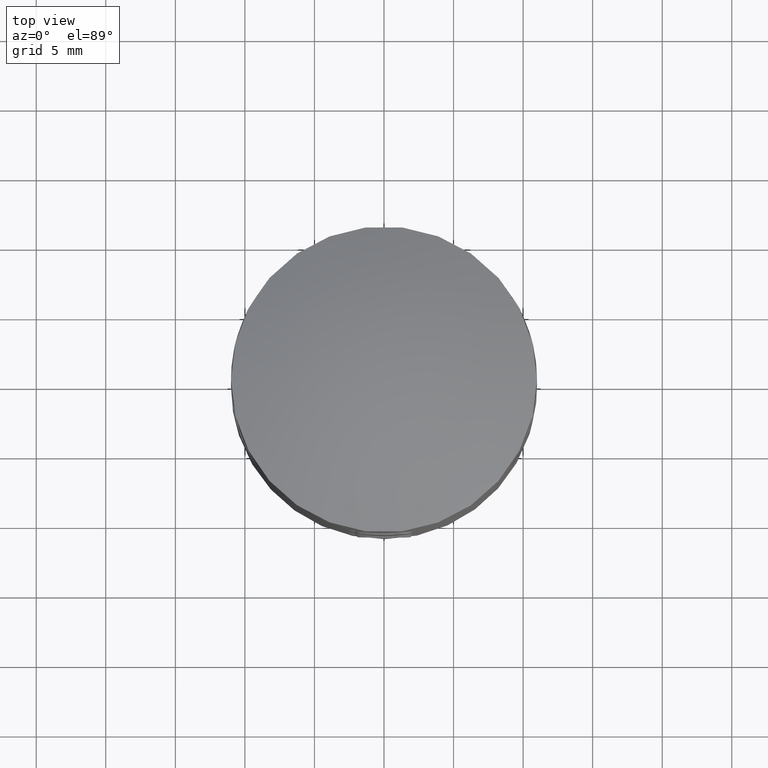
[diagram: clean part render]
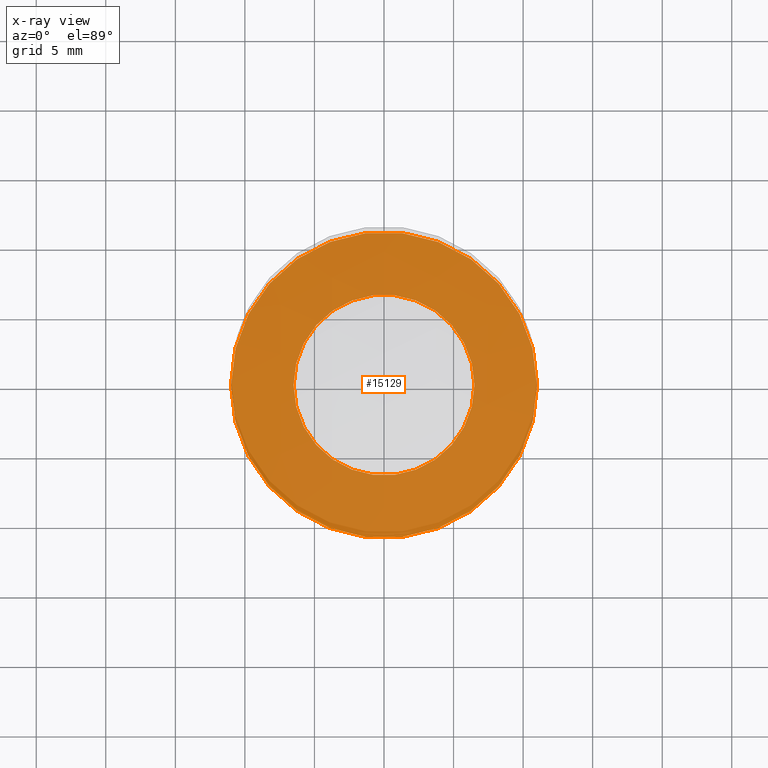
[diagram: x-ray — body ghosted, one internal face saturated and labeled with its STEP entity id]
A machine part, top view, then the same camera in x-ray: the body is ghosted and one INTERNAL B-rep face — a face not visible from any outside direction — is saturated and labeled: STEP entity #15129.
In plain terms, the highlighted planar face has unit normal (0, 0, 1).
Its self-contained STEP definition (entity closure, byte-faithful):
#29 = AXIS2_PLACEMENT_3D ( 'NONE', #19493, #18027, #5602 ) ;
#1216 = FACE_OUTER_BOUND ( 'NONE', #22195, .T. ) ;
#1453 = ORIENTED_EDGE ( 'NONE', *, *, #6207, .F. ) ;
#2091 = ORIENTED_EDGE ( 'NONE', *, *, #7060, .T. ) ;
#4476 = AXIS2_PLACEMENT_3D ( 'NONE', #19897, #15022, #4641 ) ;
#4630 = VERTEX_POINT ( 'NONE', #11767 ) ;
#4641 = DIRECTION ( 'NONE',  ( 1.000000000000000000, 0.0000000000000000000, 0.0000000000000000000 ) ) ;
#5011 = CARTESIAN_POINT ( 'NONE',  ( 6.500000000000016900, 0.0000000000000000000, 0.0000000000000000000 ) ) ;
#5447 = CARTESIAN_POINT ( 'NONE',  ( 0.0000000000000000000, 0.0000000000000000000, 0.0000000000000000000 ) ) ;
#5602 = DIRECTION ( 'NONE',  ( 1.000000000000000000, 0.0000000000000000000, 0.0000000000000000000 ) ) ;
#6207 = EDGE_CURVE ( 'NONE', #4630, #4630, #18471, .T. ) ;
#7060 = EDGE_CURVE ( 'NONE', #17373, #17373, #15623, .T. ) ;
#7253 = AXIS2_PLACEMENT_3D ( 'NONE', #5447, #8950, #21122 ) ;
#8950 = DIRECTION ( 'NONE',  ( -0.0000000000000000000, -0.0000000000000000000, 1.000000000000000000 ) ) ;
#9244 = PLANE ( 'NONE',  #29 ) ;
#11767 = CARTESIAN_POINT ( 'NONE',  ( 11.00000000000000000, 0.0000000000000000000, 0.0000000000000000000 ) ) ;
#15022 = DIRECTION ( 'NONE',  ( -0.0000000000000000000, -0.0000000000000000000, 1.000000000000000000 ) ) ;
#15129 = ADVANCED_FACE ( 'NONE', ( #21057, #1216 ), #9244, .F. ) ;
#15623 = CIRCLE ( 'NONE', #7253, 6.500000000000016900 ) ;
#17373 = VERTEX_POINT ( 'NONE', #5011 ) ;
#18027 = DIRECTION ( 'NONE',  ( 0.0000000000000000000, -0.0000000000000000000, 1.000000000000000000 ) ) ;
#18471 = CIRCLE ( 'NONE', #4476, 11.00000000000000000 ) ;
#19493 = CARTESIAN_POINT ( 'NONE',  ( 0.0000000000000000000, 0.0000000000000000000, 0.0000000000000000000 ) ) ;
#19897 = CARTESIAN_POINT ( 'NONE',  ( 0.0000000000000000000, 0.0000000000000000000, 0.0000000000000000000 ) ) ;
#20616 = EDGE_LOOP ( 'NONE', ( #2091 ) ) ;
#21057 = FACE_BOUND ( 'NONE', #20616, .T. ) ;
#21122 = DIRECTION ( 'NONE',  ( 1.000000000000000000, 0.0000000000000000000, 0.0000000000000000000 ) ) ;
#22195 = EDGE_LOOP ( 'NONE', ( #1453 ) ) ;